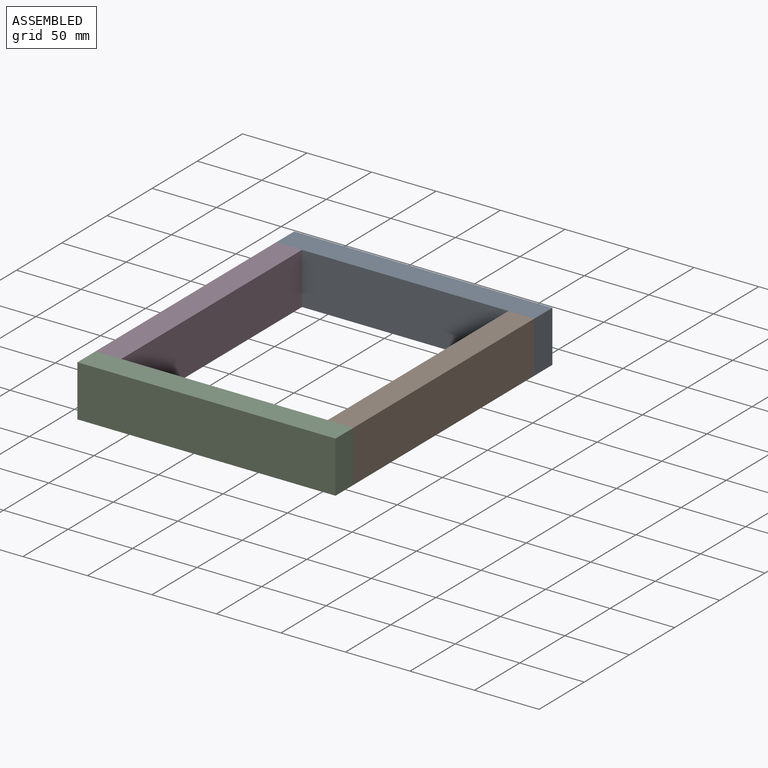
[diagram: assembled view]
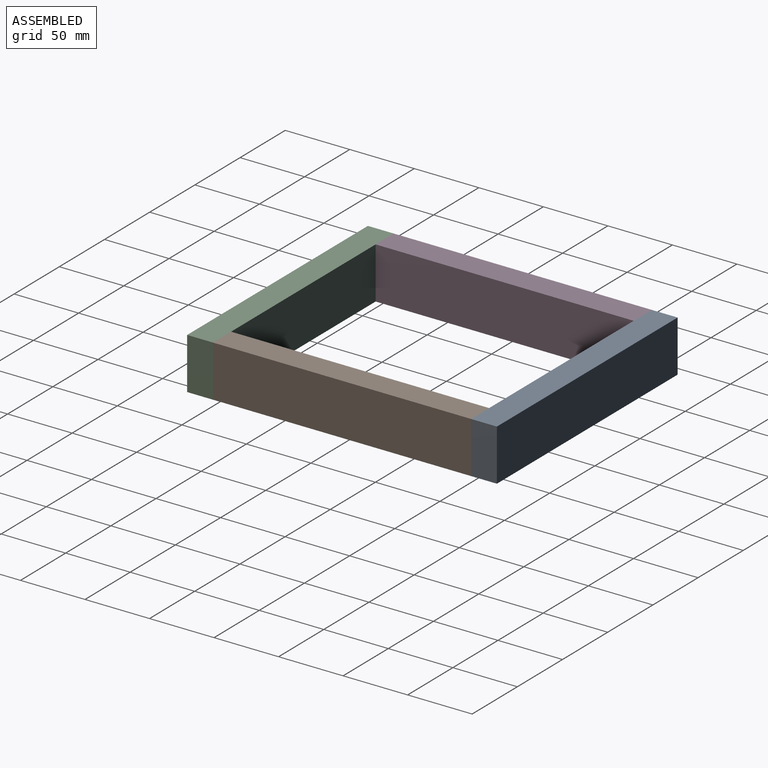
[diagram: assembled view, second angle]
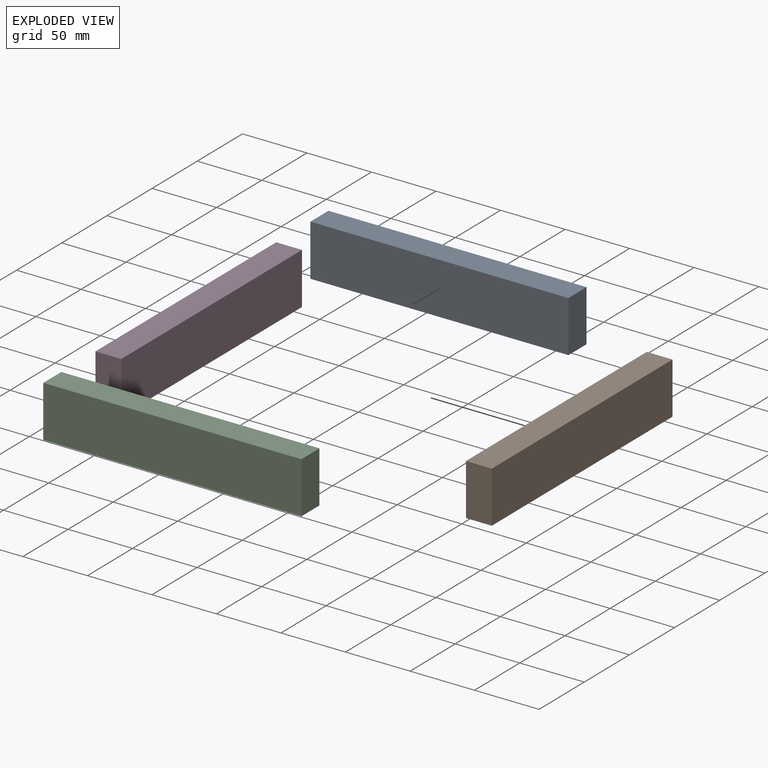
[diagram: exploded view]
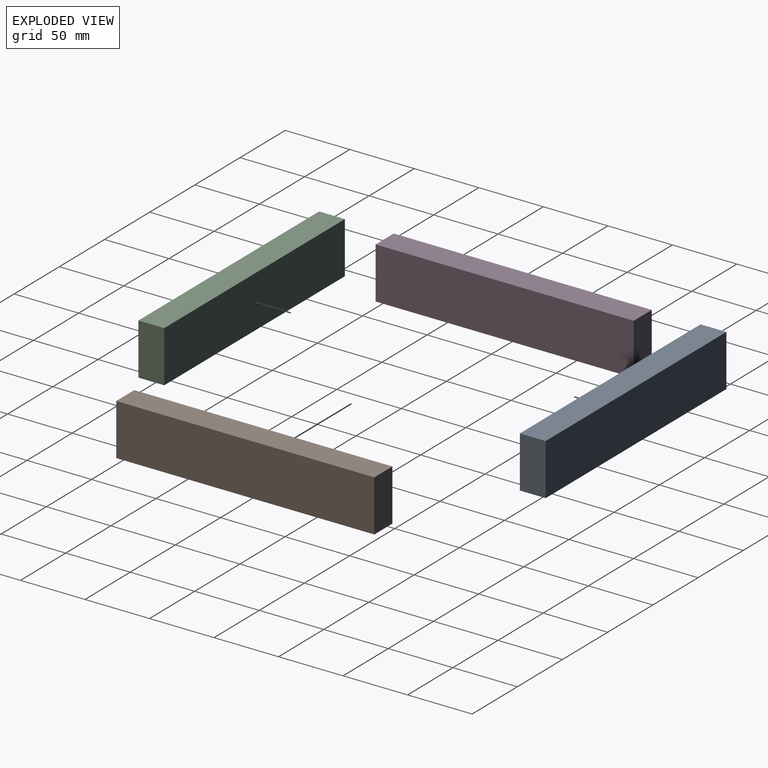
[diagram: exploded view, second angle]
ASSEMBLY  parts=4 mates=9
PART A: 6 faces, bbox 200x20x40 mm
  f0: plane 200x20mm, normal (0,0,1), area 4000mm2, adj f1,f3,f4,f5
  f1: plane 200x40mm, normal (0,-1,0), area 8000mm2, adj f0,f2,f4,f5
  f2: plane 200x20mm, normal (0,0,-1), area 4000mm2, adj f1,f3,f4,f5
  f3: plane 200x40mm, normal (0,1,0), area 8000mm2, adj f0,f2,f4,f5
  f4: plane 40x20mm, normal (1,0,0), area 800mm2, adj f0,f1,f2,f3
  f5: plane 40x20mm, normal (-1,0,0), area 800mm2, adj f0,f1,f2,f3
PART B: same geometry as A
PART C: same geometry as A
PART D: same geometry as A
PLACE A t=(-84,-6.02,117.46)mm
PLACE B rot(axis=(0.71,0.71,0),180deg) t=(39.65,-149.67,117.46)mm
PLACE C t=(-84,-226.02,117.46)mm
PLACE D rot(axis=(-0.71,0.71,0),180deg) t=(-7.66,50.33,117.46)mm
MATE planar D.f5 <-> A.f1  axis (0,1,0) through (-74,50.33,117.46)mm
MATE planar D.f3 <-> A.f5  axis (-1,0,0) through (-84,-49.67,117.46)mm
MATE planar B.f3 <-> A.f4  axis (1,0,0) through (116,-49.67,117.46)mm
MATE planar C.f3 <-> D.f4  axis (0,1,0) through (16,-149.67,117.46)mm
MATE planar B.f4 <-> A.f1  axis (0,1,0) through (106,50.33,117.46)mm
MATE planar B.f0 <-> A.f2  axis (0,0,-1) through (106,-49.67,97.46)mm
MATE planar A.f2 <-> D.f0  axis (0,0,-1) through (16,60.33,97.46)mm
MATE planar C.f4 <-> B.f3  axis (1,0,0) through (116,-159.67,117.46)mm
MATE planar B.f0 <-> C.f2  axis (0,0,-1) through (106,-49.67,97.46)mm
